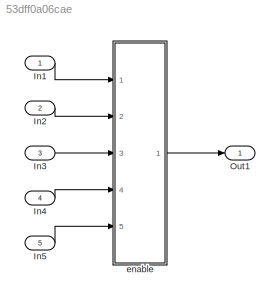
MODEL slx_53dff0a06cae
KIND model
CONFIG AbsTol = auto
CONFIG EnableMultiTasking = off
CONFIG FixedStep = auto
CONFIG MaxStep = auto
CONFIG MinStep = auto
CONFIG RelTol = 1e-3
CONFIG SampleTimeConstraint = Unconstrained
CONFIG Solver = FixedStepDiscrete
CONFIG SolverName = FixedStepDiscrete
CONFIG StartTime = 0.0
CONFIG StopTime = 10.0
BLOCK [Inport] In1
  IconDisplay = Port number
BLOCK [Inport] In2
  IconDisplay = Port number
  Port = 2
BLOCK [Inport] In3
  IconDisplay = Port number
  Port = 3
BLOCK [Inport] In4
  IconDisplay = Port number
  Port = 4
BLOCK [Inport] In5
  IconDisplay = Port number
  Port = 5
BLOCK [Outport] Out1
  IconDisplay = Port number
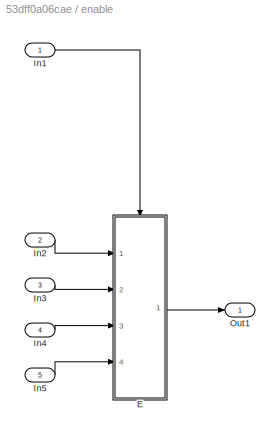
BLOCK [SubSystem] enable
  AncestorBlock = Block_TestLib/enable
  Ports = [5, 1]
  RequestExecContextInheritance = off
  Variant = off
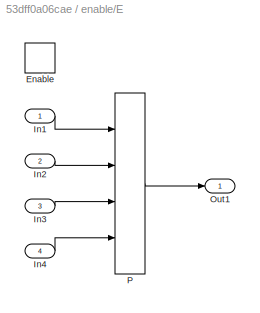
BLOCK [SubSystem] enable/E
  Ports = [4, 1, 1]
  RequestExecContextInheritance = off
  TreatAsAtomicUnit = on
  Variant = off
BLOCK [EnablePort] enable/E/Enable
  Ports = []
BLOCK [Inport] enable/E/In1
  IconDisplay = Port number
  OutMax = 2
BLOCK [Inport] enable/E/In2
  IconDisplay = Port number
  OutMax = 5
  Port = 2
BLOCK [Inport] enable/E/In3
  IconDisplay = Port number
  OutMax = 3
  OutMin = 0
  Port = 3
BLOCK [Inport] enable/E/In4
  IconDisplay = Port number
  Port = 4
  PortDimensions = [2 5 3]
BLOCK [Outport] enable/E/Out1
  IconDisplay = Port number
BLOCK [Interpolation_n-D] enable/E/P
  ExtrapMethod = Clip
  InputPortMap = u0,u1,u2,p2
  IntermediateResultsDataTypeStr = int8
  InternalRulePriority = Speed
  InterpMethod = Nearest
  NumSelectionDims = 3
  NumberOfTableDimensions = 3
  OutDataTypeStr = double
  Ports = [4, 1]
  RndMeth = Ceiling
  TableSource = Input port
BLOCK [Inport] enable/In1
  IconDisplay = Port number
  OutDataTypeStr = boolean
BLOCK [Inport] enable/In2
  IconDisplay = Port number
  Port = 2
BLOCK [Inport] enable/In3
  IconDisplay = Port number
  Port = 3
BLOCK [Inport] enable/In4
  IconDisplay = Port number
  Port = 4
BLOCK [Inport] enable/In5
  IconDisplay = Port number
  Port = 5
BLOCK [Outport] enable/Out1
  IconDisplay = Port number
LINE In1:1 -> enable:1
LINE In2:1 -> enable:2
LINE In3:1 -> enable:3
LINE In4:1 -> enable:4
LINE In5:1 -> enable:5
LINE enable:1 -> Out1:1
